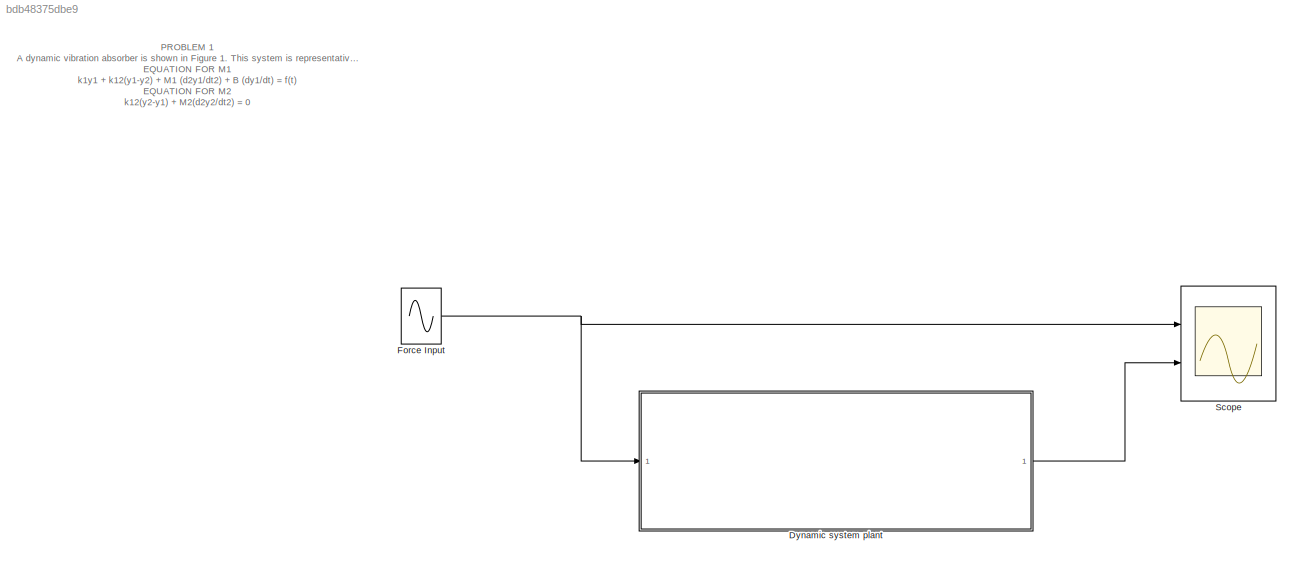
MODEL slx_bdb48375dbe9
KIND model
CONFIG AbsTol = auto
CONFIG EnableMultiTasking = off
CONFIG FixedStep = auto
CONFIG MaxStep = auto
CONFIG MinStep = auto
CONFIG PreLoadFcn = %Problem 1 - Dynamic vibration absorber\n%Values for the model\n\nb=50\nk1=50\nk12=50\nm1=100\nm2=100
CONFIG RelTol = 1e-3
CONFIG SampleTimeConstraint = Unconstrained
CONFIG SolverName = VariableStepAuto
CONFIG StartTime = 0.0
CONFIG StopTime = 10
WORKSPACE source: mxarray member
WORKSPACE b = 50
WORKSPACE k1 = 50
WORKSPACE k12 = 50
WORKSPACE m1 = 100
WORKSPACE m2 = 100
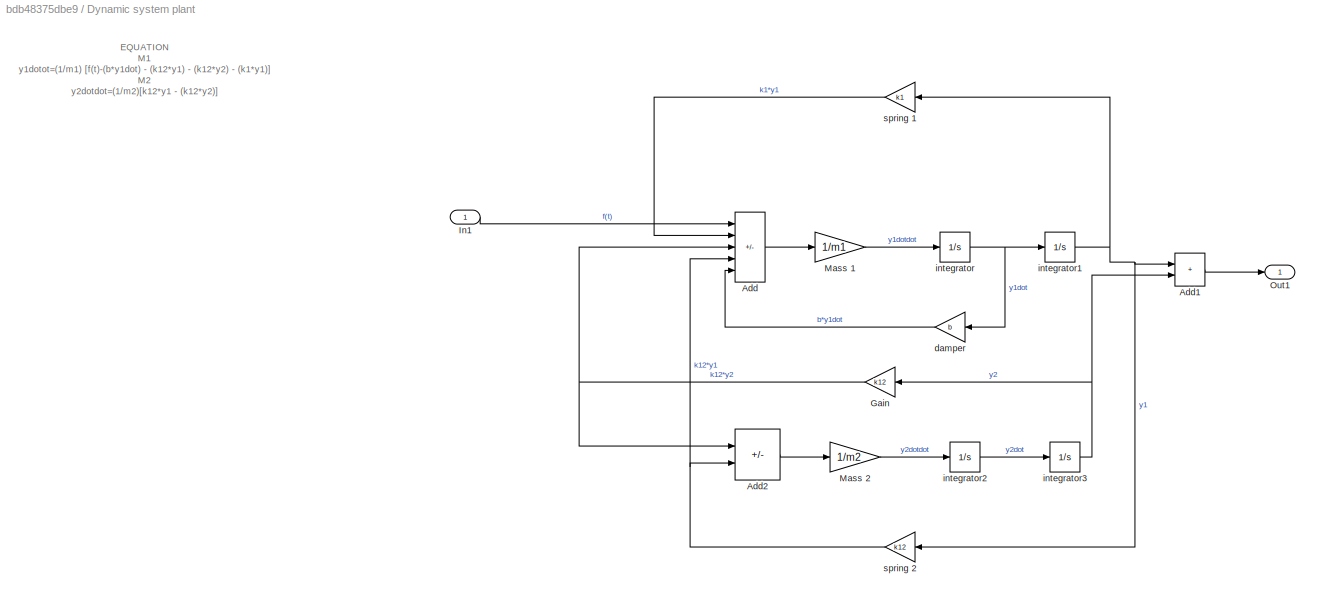
BLOCK [SubSystem] Dynamic system plant 
  Ports = [1, 1]
  RequestExecContextInheritance = off
BLOCK [Sum] Dynamic system plant /Add
  IconShape = rectangular
  Inputs = +-+--
  Ports = [5, 1]
BLOCK [Sum] Dynamic system plant /Add1
  IconShape = rectangular
  Ports = [2, 1]
BLOCK [Sum] Dynamic system plant /Add2
  IconShape = rectangular
  Inputs = -+
  Ports = [2, 1]
BLOCK [Gain] Dynamic system plant /Gain
  Gain = k12
BLOCK [Inport] Dynamic system plant /In1
BLOCK [Gain] Dynamic system plant /Mass 1
  Gain = 1/m1
BLOCK [Gain] Dynamic system plant /Mass 2
  Gain = 1/m2
BLOCK [Outport] Dynamic system plant /Out1
BLOCK [Gain] Dynamic system plant /damper
  Gain = b
BLOCK [Integrator] Dynamic system plant /integrator
  Ports = [1, 1]
BLOCK [Integrator] Dynamic system plant /integrator1
  Ports = [1, 1]
BLOCK [Integrator] Dynamic system plant /integrator2
  Ports = [1, 1]
BLOCK [Integrator] Dynamic system plant /integrator3
  Ports = [1, 1]
BLOCK [Gain] Dynamic system plant /spring 1
  Gain = k1
BLOCK [Gain] Dynamic system plant /spring 2
  Gain = k12
BLOCK [Sin] Force Input
  Amplitude = 2
  Frequency = 10
  Ports = [0, 1]
  SampleTime = 0
BLOCK [Scope] Scope 
  Floating = off
  NumInputPorts = 2
  Ports = [2]
  ScopeSpecificationString = Simulink.scopes.TimeScopeBlockCfg('CurrentConfiguration', extmgr.ConfigurationSet(extmgr.Configuration('Core','General UI',true),extmgr.Configuration('Core','Source UI',true),extmgr.Configuration('Sources','WiredSimulink',true),extmgr.Configuration('Visuals','Time Domain',true,'SerializedDisplays',{struct('MinYLimReal','-2.49932','MaxYLimReal','2.49492','YLabelReal','','MinYLimMag','0.00000','MaxY...<+1989ch>
ANNOTATION (root): PROBLEM 1 A dynamic vibration absorber is shown in Figure 1. This system is representative of many situations involving the vibration of machines containing unbalanced components. The parameters M2 and k12 maybe chosen so that the main mass M1 does not vibrate in the steady state when F(t) = 2 * sin (10 * t) Obtain the differential equations describing this system. Simulate this system for 10 seco...<+214ch>
ANNOTATION Dynamic system plant : EQUATION M1 y1dotot=(1/m1) [f(t)-(b*y1dot) - (k12*y1) - (k12*y2) - (k1*y1)] M2 y2dotdot=(1/m2)[k12*y1 - (k12*y2)]
LINE Dynamic system plant /Add1:1 -> Dynamic system plant /Out1:1
LINE Dynamic system plant /Add2:1 -> Dynamic system plant /Mass 2:1
LINE Dynamic system plant /Add:1 -> Dynamic system plant /Mass 1:1
NET Dynamic system plant /Gain:1 -> Dynamic system plant /Add2:1, Dynamic system plant /Add:3
LINE Dynamic system plant /In1:1 -> Dynamic system plant /Add:1
LINE Dynamic system plant /Mass 1:1 -> Dynamic system plant /integrator:1
LINE Dynamic system plant /Mass 2:1 -> Dynamic system plant /integrator2:1
LINE Dynamic system plant /damper:1 -> Dynamic system plant /Add:5
NET Dynamic system plant /integrator1:1 -> Dynamic system plant /Add1:1, Dynamic system plant /spring 1:1, Dynamic system plant /spring 2:1
LINE Dynamic system plant /integrator2:1 -> Dynamic system plant /integrator3:1
NET Dynamic system plant /integrator3:1 -> Dynamic system plant /Add1:2, Dynamic system plant /Gain:1
NET Dynamic system plant /integrator:1 -> Dynamic system plant /damper:1, Dynamic system plant /integrator1:1
LINE Dynamic system plant /spring 1:1 -> Dynamic system plant /Add:2
NET Dynamic system plant /spring 2:1 -> Dynamic system plant /Add2:2, Dynamic system plant /Add:4
LINE Dynamic system plant :1 -> Scope :2
NET Force Input:1 -> Dynamic system plant :1, Scope :1
note: NET lines group one-source signal fan-out (src -> all destinations, sorted); 1:1 wires keep LINE
